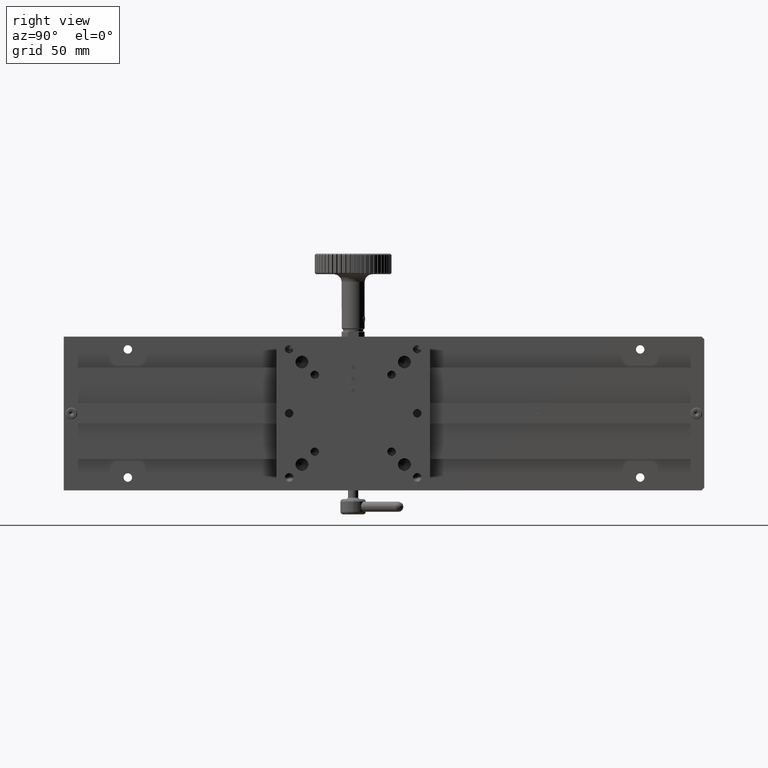
[diagram: clean part render]
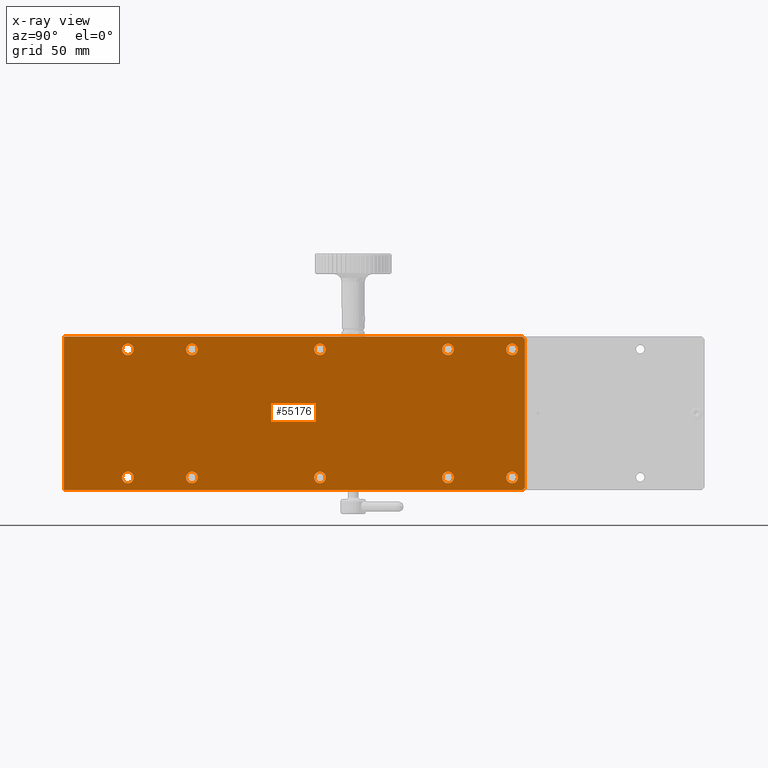
[diagram: x-ray — body ghosted, one internal face saturated and labeled with its STEP entity id]
A machine part, right view, then the same camera in x-ray: the body is ghosted and one INTERNAL B-rep face — a face not visible from any outside direction — is saturated and labeled: STEP entity #55176.
In plain terms, the highlighted planar face has unit normal (-1, 0, 0).
Its self-contained STEP definition (entity closure, byte-faithful):
#1216 = CARTESIAN_POINT ( 'NONE',  ( 63.70955724085307281, 126.1604683425934184, 90.74087116684310672 ) ) ;
#2300 = CIRCLE ( 'NONE', #70417, 2.250000000000001776 ) ;
#3566 = ORIENTED_EDGE ( 'NONE', *, *, #30707, .F. ) ;
#3782 = EDGE_LOOP ( 'NONE', ( #35642 ) ) ;
#4051 = LINE ( 'NONE', #55664, #37173 ) ;
#4144 = EDGE_CURVE ( 'NONE', #100204, #100204, #109297, .T. ) ;
#5461 = DIRECTION ( 'NONE',  ( -0.000000000000000000, -1.000000000000000000, 0.000000000000000000 ) ) ;
#7235 = CARTESIAN_POINT ( 'NONE',  ( 63.70955724085327887, 306.1604683425933899, 149.7408711668430783 ) ) ;
#7632 = DIRECTION ( 'NONE',  ( 1.000000000000000000, -0.000000000000000000, -6.982962677686266711E-15 ) ) ;
#7888 = LINE ( 'NONE', #101549, #41598 ) ;
#8064 = VERTEX_POINT ( 'NONE', #40701 ) ;
#8162 = EDGE_CURVE ( 'NONE', #84405, #32238, #22186, .T. ) ;
#11096 = FACE_BOUND ( 'NONE', #99261, .T. ) ;
#11510 = CARTESIAN_POINT ( 'NONE',  ( 63.70955724085326466, 276.1604683425934468, 147.9908711668431067 ) ) ;
#11686 = EDGE_CURVE ( 'NONE', #32238, #11992, #7888, .T. ) ;
#11992 = VERTEX_POINT ( 'NONE', #69587 ) ;
#12353 = ORIENTED_EDGE ( 'NONE', *, *, #8162, .F. ) ;
#12907 = DIRECTION ( 'NONE',  ( 6.167905692361976222E-15, 0.000000000000000000, 1.000000000000000000 ) ) ;
#13975 = ORIENTED_EDGE ( 'NONE', *, *, #4144, .F. ) ;
#14963 = CARTESIAN_POINT ( 'NONE',  ( 63.70955724085290939, 276.1604683425934468, 95.74087116684312093 ) ) ;
#15695 = CIRCLE ( 'NONE', #96301, 2.249999999999988010 ) ;
#15815 = VERTEX_POINT ( 'NONE', #18007 ) ;
#16923 = DIRECTION ( 'NONE',  ( 1.000000000000000000, 0.000000000000000000, -6.982962677686266711E-15 ) ) ;
#18007 = CARTESIAN_POINT ( 'NONE',  ( 63.70955724085322913, 226.1604683425933899, 143.4908711668430499 ) ) ;
#18558 = VERTEX_POINT ( 'NONE', #63408 ) ;
#18893 = VECTOR ( 'NONE', #28448, 1000.000000000000000 ) ;
#18946 = ORIENTED_EDGE ( 'NONE', *, *, #34115, .F. ) ;
#20071 = CARTESIAN_POINT ( 'NONE',  ( 63.70955724085327887, 306.1604683425933899, 150.7408711668431351 ) ) ;
#20228 = EDGE_LOOP ( 'NONE', ( #81199 ) ) ;
#20628 = FACE_BOUND ( 'NONE', #3782, .T. ) ;
#22186 = LINE ( 'NONE', #73831, #79136 ) ;
#22458 = DIRECTION ( 'NONE',  ( 1.000000000000000000, 0.000000000000000000, -6.982962677686266711E-15 ) ) ;
#22786 = DIRECTION ( 'NONE',  ( 6.167905692361976222E-15, 0.000000000000000000, 1.000000000000000000 ) ) ;
#22950 = DIRECTION ( 'NONE',  ( -6.167905692361976222E-15, 0.000000000000000000, -1.000000000000000000 ) ) ;
#23663 = CARTESIAN_POINT ( 'NONE',  ( 63.70955724085322913, 151.1604683425934184, 143.4908711668431067 ) ) ;
#25155 = EDGE_CURVE ( 'NONE', #70992, #70992, #72415, .T. ) ;
#25327 = ORIENTED_EDGE ( 'NONE', *, *, #96414, .F. ) ;
#25593 = ORIENTED_EDGE ( 'NONE', *, *, #74686, .F. ) ;
#26320 = CIRCLE ( 'NONE', #106943, 2.249999999999988010 ) ;
#26951 = VERTEX_POINT ( 'NONE', #94852 ) ;
#27217 = VERTEX_POINT ( 'NONE', #47394 ) ;
#27797 = CARTESIAN_POINT ( 'NONE',  ( 63.70955724085327887, 126.1604683425934184, 150.7408711668433057 ) ) ;
#27901 = FACE_BOUND ( 'NONE', #32255, .T. ) ;
#28448 = DIRECTION ( 'NONE',  ( -6.982962677686266711E-15, -0.000000000000000000, -1.000000000000000000 ) ) ;
#29847 = ORIENTED_EDGE ( 'NONE', *, *, #81510, .F. ) ;
#30707 = EDGE_CURVE ( 'NONE', #96213, #96213, #81790, .T. ) ;
#30989 = DIRECTION ( 'NONE',  ( 1.000000000000000000, -0.000000000000000000, -6.982962677686266711E-15 ) ) ;
#31252 = EDGE_CURVE ( 'NONE', #85946, #84405, #71728, .T. ) ;
#32238 = VERTEX_POINT ( 'NONE', #27797 ) ;
#32251 = CIRCLE ( 'NONE', #105812, 2.250000000000001776 ) ;
#32255 = EDGE_LOOP ( 'NONE', ( #29847 ) ) ;
#33637 = CARTESIAN_POINT ( 'NONE',  ( 63.70955724085289518, 301.1604683425933899, 95.74087116684317778 ) ) ;
#34115 = EDGE_CURVE ( 'NONE', #79395, #79395, #38954, .T. ) ;
#35642 = ORIENTED_EDGE ( 'NONE', *, *, #40136, .F. ) ;
#36182 = CARTESIAN_POINT ( 'NONE',  ( 63.70955724085288097, 151.1604683425934184, 93.49087116684309251 ) ) ;
#37173 = VECTOR ( 'NONE', #38277, 999.9999999999998863 ) ;
#37450 = DIRECTION ( 'NONE',  ( 6.982962677686266711E-15, 0.000000000000000000, 1.000000000000000000 ) ) ;
#37591 = CARTESIAN_POINT ( 'NONE',  ( 63.70955724085289518, 176.1604683425934184, 95.74087116684312093 ) ) ;
#38277 = DIRECTION ( 'NONE',  ( -0.000000000000000000, 0.7071067811865376918, -0.7071067811865574537 ) ) ;
#38954 = CIRCLE ( 'NONE', #87251, 2.249999999999988010 ) ;
#40073 = FACE_BOUND ( 'NONE', #20228, .T. ) ;
#40136 = EDGE_CURVE ( 'NONE', #27217, #27217, #69483, .T. ) ;
#40701 = CARTESIAN_POINT ( 'NONE',  ( 63.70955724085295913, 306.1604683425934468, 91.74087116684313514 ) ) ;
#40775 = CARTESIAN_POINT ( 'NONE',  ( 63.70955724085325755, 176.1604683425934184, 147.9908711668431067 ) ) ;
#41207 = EDGE_CURVE ( 'NONE', #11992, #100900, #4051, .T. ) ;
#41598 = VECTOR ( 'NONE', #49995, 1000.000000000000000 ) ;
#41658 = DIRECTION ( 'NONE',  ( 6.167905692361976222E-15, 0.000000000000000000, 1.000000000000000000 ) ) ;
#44621 = CARTESIAN_POINT ( 'NONE',  ( 63.70955724085324334, 151.1604683425934184, 145.7408711668431067 ) ) ;
#44791 = CARTESIAN_POINT ( 'NONE',  ( 63.70955724085325755, 276.1604683425934468, 145.7408711668431067 ) ) ;
#45011 = EDGE_CURVE ( 'NONE', #109443, #109443, #48081, .T. ) ;
#47394 = CARTESIAN_POINT ( 'NONE',  ( 63.70955724085322913, 301.1604683425933899, 143.4908711668430499 ) ) ;
#47937 = FACE_BOUND ( 'NONE', #95173, .T. ) ;
#48081 = CIRCLE ( 'NONE', #73163, 2.250000000000001776 ) ;
#48388 = ORIENTED_EDGE ( 'NONE', *, *, #31252, .F. ) ;
#49995 = DIRECTION ( 'NONE',  ( 0.000000000000000000, 1.000000000000000000, -0.000000000000000000 ) ) ;
#50291 = AXIS2_PLACEMENT_3D ( 'NONE', #20071, #83286, #37450 ) ;
#50967 = EDGE_LOOP ( 'NONE', ( #107611 ) ) ;
#51132 = CARTESIAN_POINT ( 'NONE',  ( 63.70955724085289518, 226.1604683425933899, 95.74087116684307830 ) ) ;
#52609 = DIRECTION ( 'NONE',  ( 1.000000000000000000, 0.000000000000000000, -6.982962677686266711E-15 ) ) ;
#54271 = CARTESIAN_POINT ( 'NONE',  ( 63.70955724085324334, 301.1604683425933899, 145.7408711668430499 ) ) ;
#54370 = EDGE_CURVE ( 'NONE', #15815, #15815, #32251, .T. ) ;
#54843 = FACE_BOUND ( 'NONE', #50967, .T. ) ;
#55176 = ADVANCED_FACE ( 'NONE', ( #105860, #40073, #54843, #97463, #62147, #20628, #27901, #96356, #74326, #11096, #47937 ), #62703, .F. ) ;
#55664 = CARTESIAN_POINT ( 'NONE',  ( 63.70955724085327887, 306.1604683425933331, 149.7408711668431636 ) ) ;
#56083 = VERTEX_POINT ( 'NONE', #57752 ) ;
#57533 = DIRECTION ( 'NONE',  ( 6.982962677686266711E-15, 0.000000000000000000, 1.000000000000000000 ) ) ;
#57752 = CARTESIAN_POINT ( 'NONE',  ( 63.70955724085288097, 226.1604683425933899, 93.49087116684307830 ) ) ;
#58503 = ORIENTED_EDGE ( 'NONE', *, *, #45011, .F. ) ;
#59934 = CARTESIAN_POINT ( 'NONE',  ( 63.70955724085289518, 151.1604683425934184, 95.74087116684309251 ) ) ;
#60912 = CARTESIAN_POINT ( 'NONE',  ( 63.70955724085292360, 276.1604683425934468, 97.99087116684313514 ) ) ;
#61081 = DIRECTION ( 'NONE',  ( 6.167905692361976222E-15, 0.000000000000000000, 1.000000000000000000 ) ) ;
#62095 = VECTOR ( 'NONE', #5461, 1000.000000000000000 ) ;
#62147 = FACE_BOUND ( 'NONE', #82181, .T. ) ;
#62703 = PLANE ( 'NONE',  #50291 ) ;
#63408 = CARTESIAN_POINT ( 'NONE',  ( 63.70955724085288097, 301.1604683425933899, 93.49087116684319199 ) ) ;
#65460 = ORIENTED_EDGE ( 'NONE', *, *, #11686, .F. ) ;
#65589 = CARTESIAN_POINT ( 'NONE',  ( 63.70955724085286676, 306.1604683425935036, 91.74087116684323462 ) ) ;
#65666 = EDGE_CURVE ( 'NONE', #26951, #26951, #2300, .T. ) ;
#66159 = DIRECTION ( 'NONE',  ( -0.000000000000000000, -0.7071067811865376918, -0.7071067811865574537 ) ) ;
#67067 = AXIS2_PLACEMENT_3D ( 'NONE', #14963, #7632, #22786 ) ;
#69483 = CIRCLE ( 'NONE', #71238, 2.250000000000001776 ) ;
#69587 = CARTESIAN_POINT ( 'NONE',  ( 63.70955724085327887, 305.1604683425933331, 150.7408711668431351 ) ) ;
#70417 = AXIS2_PLACEMENT_3D ( 'NONE', #37591, #71845, #12907 ) ;
#70992 = VERTEX_POINT ( 'NONE', #60912 ) ;
#71122 = LINE ( 'NONE', #105272, #18893 ) ;
#71238 = AXIS2_PLACEMENT_3D ( 'NONE', #54271, #52609, #87394 ) ;
#71269 = EDGE_LOOP ( 'NONE', ( #25593, #81908, #105191, #65460, #12353, #48388 ) ) ;
#71728 = LINE ( 'NONE', #89106, #62095 ) ;
#71845 = DIRECTION ( 'NONE',  ( 1.000000000000000000, -0.000000000000000000, -6.982962677686266711E-15 ) ) ;
#72415 = CIRCLE ( 'NONE', #67067, 2.250000000000001776 ) ;
#73163 = AXIS2_PLACEMENT_3D ( 'NONE', #44621, #78847, #95122 ) ;
#73472 = LINE ( 'NONE', #65589, #103018 ) ;
#73831 = CARTESIAN_POINT ( 'NONE',  ( 63.70955724085327887, 126.1604683425934184, 150.7408711668431351 ) ) ;
#74326 = FACE_BOUND ( 'NONE', #97668, .T. ) ;
#74686 = EDGE_CURVE ( 'NONE', #8064, #85946, #73472, .T. ) ;
#74789 = CARTESIAN_POINT ( 'NONE',  ( 63.70955724085324334, 176.1604683425934184, 145.7408711668431067 ) ) ;
#76174 = EDGE_CURVE ( 'NONE', #100900, #8064, #71122, .T. ) ;
#77876 = DIRECTION ( 'NONE',  ( -6.167905692362013299E-15, 0.000000000000000000, -1.000000000000000000 ) ) ;
#77937 = EDGE_LOOP ( 'NONE', ( #13975 ) ) ;
#78847 = DIRECTION ( 'NONE',  ( 1.000000000000000000, 0.000000000000000000, -6.982962677686266711E-15 ) ) ;
#79136 = VECTOR ( 'NONE', #57533, 1000.000000000000000 ) ;
#79395 = VERTEX_POINT ( 'NONE', #36182 ) ;
#81093 = EDGE_LOOP ( 'NONE', ( #18946 ) ) ;
#81199 = ORIENTED_EDGE ( 'NONE', *, *, #25155, .F. ) ;
#81510 = EDGE_CURVE ( 'NONE', #18558, #18558, #26320, .T. ) ;
#81790 = CIRCLE ( 'NONE', #89029, 2.250000000000001776 ) ;
#81908 = ORIENTED_EDGE ( 'NONE', *, *, #76174, .F. ) ;
#82181 = EDGE_LOOP ( 'NONE', ( #3566 ) ) ;
#83286 = DIRECTION ( 'NONE',  ( -1.000000000000000000, 0.000000000000000000, 6.982962677686266711E-15 ) ) ;
#83560 = DIRECTION ( 'NONE',  ( 1.000000000000000000, 0.000000000000000000, -6.982962677686266711E-15 ) ) ;
#84405 = VERTEX_POINT ( 'NONE', #1216 ) ;
#85946 = VERTEX_POINT ( 'NONE', #105919 ) ;
#87251 = AXIS2_PLACEMENT_3D ( 'NONE', #59934, #94148, #77876 ) ;
#87394 = DIRECTION ( 'NONE',  ( -6.167905692361976222E-15, 0.000000000000000000, -1.000000000000000000 ) ) ;
#89029 = AXIS2_PLACEMENT_3D ( 'NONE', #44791, #96933, #61081 ) ;
#89106 = CARTESIAN_POINT ( 'NONE',  ( 63.70955724085286676, 306.1604683425933899, 90.74087116684310672 ) ) ;
#89968 = ORIENTED_EDGE ( 'NONE', *, *, #54370, .F. ) ;
#94148 = DIRECTION ( 'NONE',  ( 1.000000000000000000, 0.000000000000000000, -6.982962677686266711E-15 ) ) ;
#94852 = CARTESIAN_POINT ( 'NONE',  ( 63.70955724085290939, 176.1604683425934184, 97.99087116684313514 ) ) ;
#95122 = DIRECTION ( 'NONE',  ( -6.167905692361976222E-15, 0.000000000000000000, -1.000000000000000000 ) ) ;
#95173 = EDGE_LOOP ( 'NONE', ( #89968 ) ) ;
#96213 = VERTEX_POINT ( 'NONE', #11510 ) ;
#96301 = AXIS2_PLACEMENT_3D ( 'NONE', #51132, #16923, #101057 ) ;
#96356 = FACE_BOUND ( 'NONE', #81093, .T. ) ;
#96414 = EDGE_CURVE ( 'NONE', #56083, #56083, #15695, .T. ) ;
#96933 = DIRECTION ( 'NONE',  ( 1.000000000000000000, -0.000000000000000000, -6.982962677686266711E-15 ) ) ;
#97463 = FACE_BOUND ( 'NONE', #77937, .T. ) ;
#97668 = EDGE_LOOP ( 'NONE', ( #58503 ) ) ;
#99261 = EDGE_LOOP ( 'NONE', ( #25327 ) ) ;
#100204 = VERTEX_POINT ( 'NONE', #40775 ) ;
#100336 = AXIS2_PLACEMENT_3D ( 'NONE', #74789, #30989, #41658 ) ;
#100900 = VERTEX_POINT ( 'NONE', #7235 ) ;
#101057 = DIRECTION ( 'NONE',  ( -6.167905692362013299E-15, 0.000000000000000000, -1.000000000000000000 ) ) ;
#101549 = CARTESIAN_POINT ( 'NONE',  ( 63.70955724085327887, 306.1604683425933899, 150.7408711668431351 ) ) ;
#103018 = VECTOR ( 'NONE', #66159, 999.9999999999998863 ) ;
#105191 = ORIENTED_EDGE ( 'NONE', *, *, #41207, .F. ) ;
#105272 = CARTESIAN_POINT ( 'NONE',  ( 63.70955724085327887, 306.1604683425933899, 150.7408711668431351 ) ) ;
#105812 = AXIS2_PLACEMENT_3D ( 'NONE', #108742, #83560, #22950 ) ;
#105860 = FACE_OUTER_BOUND ( 'NONE', #71269, .T. ) ;
#105919 = CARTESIAN_POINT ( 'NONE',  ( 63.70955724085286676, 305.1604683425933899, 90.74087116684309251 ) ) ;
#106943 = AXIS2_PLACEMENT_3D ( 'NONE', #33637, #22458, #109917 ) ;
#107611 = ORIENTED_EDGE ( 'NONE', *, *, #65666, .F. ) ;
#108742 = CARTESIAN_POINT ( 'NONE',  ( 63.70955724085324334, 226.1604683425933899, 145.7408711668430499 ) ) ;
#109297 = CIRCLE ( 'NONE', #100336, 2.250000000000001776 ) ;
#109443 = VERTEX_POINT ( 'NONE', #23663 ) ;
#109917 = DIRECTION ( 'NONE',  ( -6.167905692362013299E-15, 0.000000000000000000, -1.000000000000000000 ) ) ;